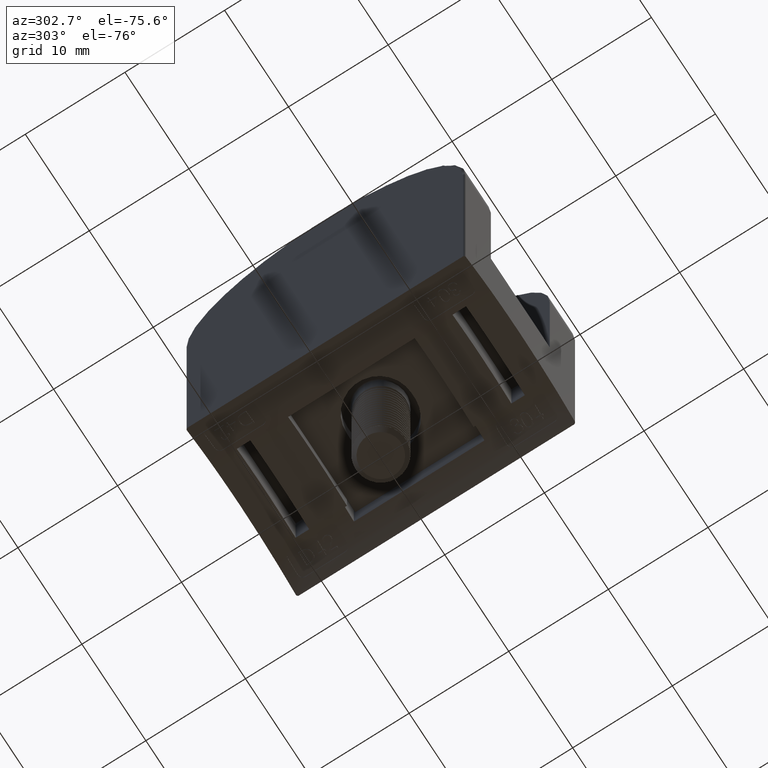
[diagram: clean part render]
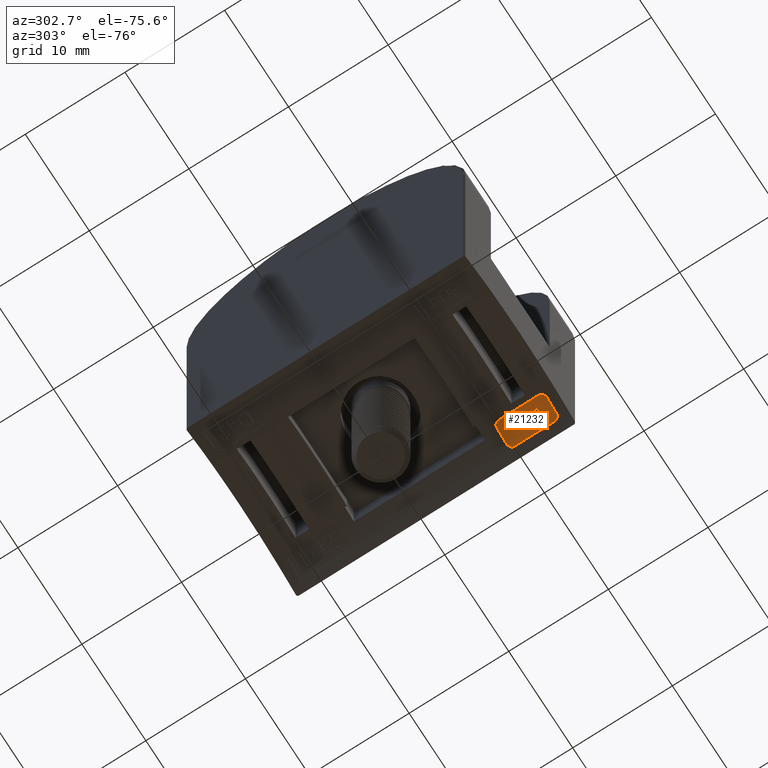
[diagram: same view with one face highlighted and labeled with its STEP entity id]
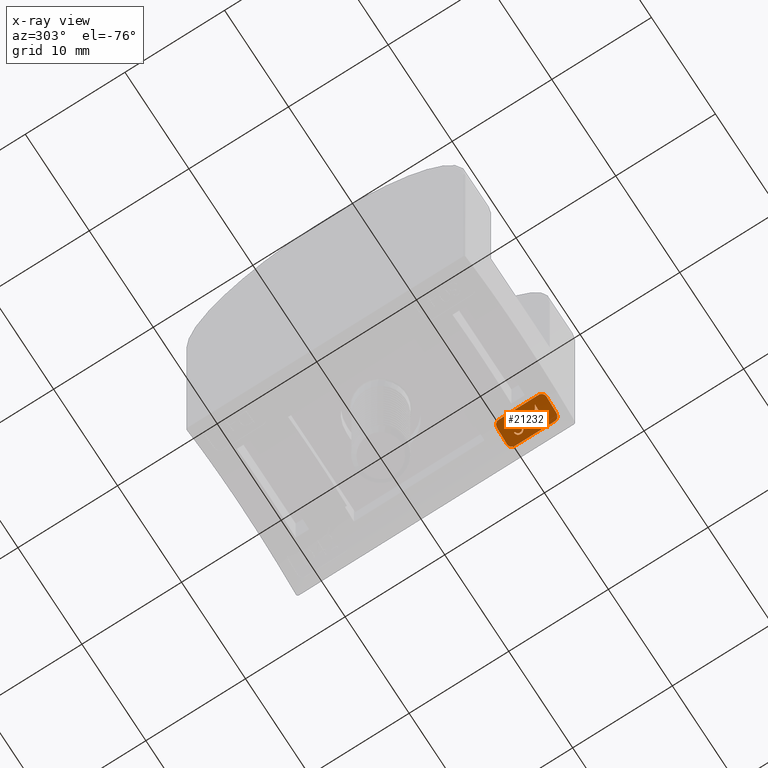
[diagram: x-ray of the same camera — body ghosted, the highlighted face saturated]
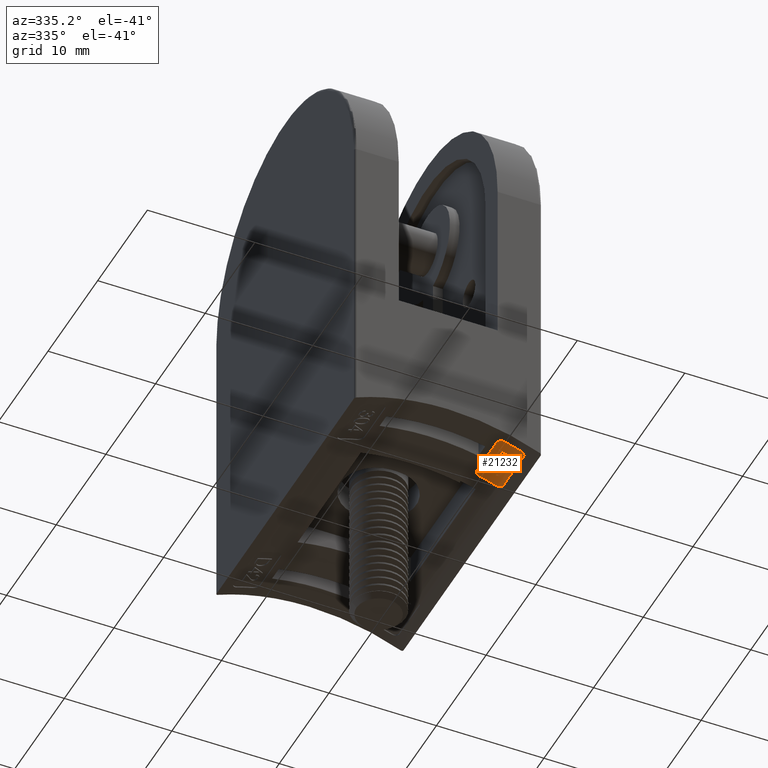
[diagram: same view with one face highlighted and labeled with its STEP entity id]
A machine part, auxiliary view. The second image highlights one B-rep face of the part: STEP entity #21232.
The next image is the same camera in x-ray: the body ghosted, the highlighted face saturated — about 0% of this face is hidden behind the body in this view.
A second angle (auxiliary view) of the same face is appended — the face is thin or edge-on in the first view.
In plain terms, the highlighted cylindrical surface (partial cylindrical patch) has radius 21.3 mm, axis along (0, -1, -0).
Its self-contained STEP definition (entity closure, byte-faithful):
#107 = CARTESIAN_POINT ( 'NONE',  ( 2.336716980450768100, 10.04251046659665100, -0.8725567064124172300 ) ) ;
#367 = CARTESIAN_POINT ( 'NONE',  ( 1.701762820512820400, 9.467796390892088400, -1.082478373824392800 ) ) ;
#401 = DIRECTION ( 'NONE',  ( 0.0000000000000000000, -1.628848334250523300E-016, 1.000000000000000000 ) ) ;
#613 = ORIENTED_EDGE ( 'NONE', *, *, #2674, .T. ) ;
#615 = EDGE_CURVE ( 'NONE', #7838, #30234, #45413, .T. ) ;
#631 = ORIENTED_EDGE ( 'NONE', *, *, #615, .F. ) ;
#670 = CARTESIAN_POINT ( 'NONE',  ( 2.927280367700587900, 10.64199235671665600, -0.6971742882726617000 ) ) ;
#694 = CARTESIAN_POINT ( 'NONE',  ( 1.499999999999999600, 12.99999999999999500, -1.153803353254268000 ) ) ;
#914 = ORIENTED_EDGE ( 'NONE', *, *, #15889, .F. ) ;
#1040 = CARTESIAN_POINT ( 'NONE',  ( 2.040972222222222000, 11.95860042735040800, -0.9676657536807284900 ) ) ;
#1139 = ORIENTED_EDGE ( 'NONE', *, *, #54323, .F. ) ;
#1266 = VECTOR ( 'NONE', #15640, 1000.000000000000000 ) ;
#1423 = CARTESIAN_POINT ( 'NONE',  ( 2.336982387779509300, 10.94005993665469800, -0.8724725344912700500 ) ) ;
#1484 = EDGE_CURVE ( 'NONE', #48206, #15081, #6601, .T. ) ;
#1551 = CARTESIAN_POINT ( 'NONE',  ( 1.904529400476168400, 9.034732480035389200, -1.013010547043867900 ) ) ;
#1644 = CARTESIAN_POINT ( 'NONE',  ( 1.773314803685897400, 9.246780265090807300, -1.057730212531585900 ) ) ;
#1822 = CARTESIAN_POINT ( 'NONE',  ( 3.000000000000000000, 7.999999999999992900, -0.6768423482155193600 ) ) ;
#1878 = CARTESIAN_POINT ( 'NONE',  ( 1.884405352833910000, 10.08410433700667100, -1.019739268753361300 ) ) ;
#2070 = CARTESIAN_POINT ( 'NONE',  ( 1.566079059829058600, 10.48436456663995000, -1.130192526598806600 ) ) ;
#2214 = VERTEX_POINT ( 'NONE', #4563 ) ;
#2218 = CARTESIAN_POINT ( 'NONE',  ( 2.817099914964023000, 9.407898243591880300, -0.7285179495271325600 ) ) ;
#2222 = CARTESIAN_POINT ( 'NONE',  ( 1.599999999999999900, 11.80595619658118900, -1.118167414302057700 ) ) ;
#2325 = ORIENTED_EDGE ( 'NONE', *, *, #36629, .T. ) ;
#2451 = VERTEX_POINT ( 'NONE', #17112 ) ;
#2583 = ORIENTED_EDGE ( 'NONE', *, *, #37218, .F. ) ;
#2674 = EDGE_CURVE ( 'NONE', #4021, #51767, #49578, .T. ) ;
#2890 = VECTOR ( 'NONE', #54993, 1000.000000000000000 ) ;
#3027 = EDGE_CURVE ( 'NONE', #31090, #40650, #3243, .T. ) ;
#3033 = CARTESIAN_POINT ( 'NONE',  ( 1.000000000000000000, -13.99999999999999800, -1.340493460309753800 ) ) ;
#3133 = ORIENTED_EDGE ( 'NONE', *, *, #48576, .F. ) ;
#3243 = B_SPLINE_CURVE_WITH_KNOTS ( 'NONE', 3,
 ( #21499, #57081, #8512, #4430, #30439, #3842, #8698, #48336, #52806, #26159, #57279, #31778 ),
 .UNSPECIFIED., .F., .F.,
 ( 4, 2, 2, 2, 2, 4 ),
 ( 0.0000000000000000000, 0.0001203445888206982300, 0.0002406891776413964500, 0.0004813783552827931200, 0.0007220675329241897600, 0.0009627567105655864600 ),
 .UNSPECIFIED. ) ;
#3280 = CIRCLE ( 'NONE', #55965, 21.29999999999999700 ) ;
#3344 = CARTESIAN_POINT ( 'NONE',  ( 1.574971247746414800, 9.584047887397915100, -1.127022289563970100 ) ) ;
#3381 = CARTESIAN_POINT ( 'NONE',  ( 2.728254400346623600, 9.696771050491738800, -0.7542417906652337800 ) ) ;
#3658 = CARTESIAN_POINT ( 'NONE',  ( 1.981610576923076500, 9.804620726495720400, -0.9872999438499561200 ) ) ;
#3842 = CARTESIAN_POINT ( 'NONE',  ( 1.681486957863870300, 10.77539051482399500, -1.089486548218289600 ) ) ;
#4021 = VERTEX_POINT ( 'NONE', #9360 ) ;
#4047 = CARTESIAN_POINT ( 'NONE',  ( 2.956837606837610100, 11.78184052817841400, -0.6888789744254825200 ) ) ;
#4165 = ORIENTED_EDGE ( 'NONE', *, *, #54482, .T. ) ;
#4287 = LINE ( 'NONE', #36918, #18886 ) ;
#4306 = CARTESIAN_POINT ( 'NONE',  ( 1.000000000000000000, 8.499999999999987600, -1.340493460309753800 ) ) ;
#4392 = FACE_BOUND ( 'NONE', #54806, .T. ) ;
#4430 = CARTESIAN_POINT ( 'NONE',  ( 1.595831776824860000, 10.64174985182226700, -1.119637574759780700 ) ) ;
#4563 = CARTESIAN_POINT ( 'NONE',  ( 2.613123080261752200, 9.855502136752130900, -0.7882404148011368200 ) ) ;
#4753 = ORIENTED_EDGE ( 'NONE', *, *, #25472, .T. ) ;
#4785 = CARTESIAN_POINT ( 'NONE',  ( 1.058567078858126300, 12.76839942131372000, -1.317634387436335900 ) ) ;
#5337 = EDGE_CURVE ( 'NONE', #20968, #2451, #3280, .T. ) ;
#5384 = CARTESIAN_POINT ( 'NONE',  ( 2.410472446007299500, 9.548994003810955500, -0.8497405773597674900 ) ) ;
#5419 = ORIENTED_EDGE ( 'NONE', *, *, #7708, .T. ) ;
#5707 = CARTESIAN_POINT ( 'NONE',  ( 1.956169871794871200, 9.024439102564088000, -0.9957738281835566400 ) ) ;
#5993 = ORIENTED_EDGE ( 'NONE', *, *, #29583, .T. ) ;
#6059 = CARTESIAN_POINT ( 'NONE',  ( 2.915810477845265100, 9.282814626264972400, -0.7004035471916197900 ) ) ;
#6104 = VERTEX_POINT ( 'NONE', #24966 ) ;
#6115 = EDGE_CURVE ( 'NONE', #35760, #53698, #26392, .T. ) ;
#6274 = B_SPLINE_CURVE_WITH_KNOTS ( 'NONE', 3,
 ( #35445, #53154, #57032, #26707, #8264, #13496, #35261, #39712, #107, #13116 ),
 .UNSPECIFIED., .F., .F.,
 ( 4, 2, 2, 2, 4 ),
 ( 0.0000000000000000000, 0.0002377213839339317800, 0.0004754427678678635500, 0.0007131641518017953800, 0.0009508855357357271000 ),
 .UNSPECIFIED. ) ;
#6313 = ORIENTED_EDGE ( 'NONE', *, *, #11194, .T. ) ;
#6412 = VECTOR ( 'NONE', #7517, 1000.000000000000000 ) ;
#6430 = CARTESIAN_POINT ( 'NONE',  ( 2.481130522248788500, 9.829450042813915500, -0.8280519457517489000 ) ) ;
#6439 = CIRCLE ( 'NONE', #38020, 21.29999999999999700 ) ;
#6563 = CARTESIAN_POINT ( 'NONE',  ( 1.905288461538461800, -13.99999999999999800, -1.012828451982250600 ) ) ;
#6601 = B_SPLINE_CURVE_WITH_KNOTS ( 'NONE', 3,
 ( #39334, #56477, #38584, #34512, #29832, #7710 ),
 .UNSPECIFIED., .F., .F.,
 ( 4, 2, 4 ),
 ( 0.0000000000000000000, 9.425284090821902500E-005, 0.0001885056818164380500 ),
 .UNSPECIFIED. ) ;
#6610 = CARTESIAN_POINT ( 'NONE',  ( 1.611026649768792800, 9.249590227254472600, -1.114262523935421400 ) ) ;
#6743 = CARTESIAN_POINT ( 'NONE',  ( 1.773314803685897400, 9.246780265090807300, -1.057730212531585900 ) ) ;
#6775 = CARTESIAN_POINT ( 'NONE',  ( 8.699999999999997500, 7.999999999999996400, -21.19999999999999900 ) ) ;
#6983 = EDGE_LOOP ( 'NONE', ( #5993, #16331, #56151, #12849, #26182, #47979, #4165, #38710, #12687, #54432 ) ) ;
#7260 = CARTESIAN_POINT ( 'NONE',  ( 2.821153846153845500, 9.470711471688028700, -0.7273556202573549000 ) ) ;
#7311 = EDGE_CURVE ( 'NONE', #21743, #36142, #22119, .T. ) ;
#7517 = DIRECTION ( 'NONE',  ( -0.0000000000000000000, 1.000000000000000000, -0.0000000000000000000 ) ) ;
#7573 = CARTESIAN_POINT ( 'NONE',  ( 2.226911418462858000, 9.628968066056423000, -0.9073975327981486100 ) ) ;
#7630 = CIRCLE ( 'NONE', #36796, 21.29999999999999700 ) ;
#7708 = EDGE_CURVE ( 'NONE', #51767, #44265, #21168, .T. ) ;
#7710 = CARTESIAN_POINT ( 'NONE',  ( 2.340960536858974500, 9.701002854567303000, -0.8713842796363794300 ) ) ;
#7764 = CARTESIAN_POINT ( 'NONE',  ( 2.026620679262090900, 9.802504027619058000, -0.9723392807695154800 ) ) ;
#7838 = VERTEX_POINT ( 'NONE', #44615 ) ;
#7882 = CARTESIAN_POINT ( 'NONE',  ( 2.674855664000032300, 9.728850478894871800, -0.7699140972944768000 ) ) ;
#8264 = CARTESIAN_POINT ( 'NONE',  ( 2.776641701109790800, 10.14863217367450300, -0.7400631787240076200 ) ) ;
#8512 = CARTESIAN_POINT ( 'NONE',  ( 1.571892562963153700, 10.56471175237527800, -1.128123016562933000 ) ) ;
#8698 = CARTESIAN_POINT ( 'NONE',  ( 1.745239486659486500, 10.82452989976599900, -1.067277058028242000 ) ) ;
#8773 = CARTESIAN_POINT ( 'NONE',  ( 1.058224646979123700, 8.231814502219073400, -1.317762900616831000 ) ) ;
#8819 = EDGE_LOOP ( 'NONE', ( #39111, #33384, #28602, #57035, #40953, #47996, #49234, #12466, #9589, #17811, #631, #29335, #50220, #30759, #24375, #914, #1139 ) ) ;
#8947 = CARTESIAN_POINT ( 'NONE',  ( 2.617628205128204500, 9.075320512820502100, -0.7868975079987462500 ) ) ;
#9254 = VECTOR ( 'NONE', #22316, 1000.000000000000000 ) ;
#9360 = CARTESIAN_POINT ( 'NONE',  ( 3.000000000000000000, 12.99999999999999500, -0.6768423482155193600 ) ) ;
#9589 = ORIENTED_EDGE ( 'NONE', *, *, #41707, .F. ) ;
#9600 = CARTESIAN_POINT ( 'NONE',  ( 2.841004732759282000, 10.77616472196325900, -0.7216116786686894700 ) ) ;
#9708 = DIRECTION ( 'NONE',  ( 0.0000000000000000000, 1.628848334250523300E-016, -1.000000000000000000 ) ) ;
#9791 = DIRECTION ( 'NONE',  ( -0.0000000000000000000, -1.000000000000000000, -1.734723475976807100E-016 ) ) ;
#9869 = VERTEX_POINT ( 'NONE', #42053 ) ;
#9928 = CARTESIAN_POINT ( 'NONE',  ( 2.707717102999166700, 9.097079297774870500, -0.7600542502599461100 ) ) ;
#9932 = VERTEX_POINT ( 'NONE', #37553 ) ;
#10005 = CARTESIAN_POINT ( 'NONE',  ( 1.000000000000000000, 12.49999999999998800, -1.340493460309753800 ) ) ;
#10080 = VECTOR ( 'NONE', #57471, 1000.000000000000000 ) ;
#10366 = DIRECTION ( 'NONE',  ( 0.0000000000000000000, 1.628848334250523300E-016, -1.000000000000000000 ) ) ;
#10476 = VERTEX_POINT ( 'NONE', #38925 ) ;
#10639 = CARTESIAN_POINT ( 'NONE',  ( 2.109228262619880400, 10.04562381683239800, -0.9451753004347146500 ) ) ;
#10689 = CARTESIAN_POINT ( 'NONE',  ( 1.566079059829060400, 9.465676332131405200, -1.130192526598805300 ) ) ;
#11027 = CARTESIAN_POINT ( 'NONE',  ( 1.702551003345389200, 9.509711520880104600, -1.082204190428167000 ) ) ;
#11069 = CARTESIAN_POINT ( 'NONE',  ( 1.000000000000000000, 12.49999999999998800, -1.340493460309753800 ) ) ;
#11194 = EDGE_CURVE ( 'NONE', #9869, #53540, #39054, .T. ) ;
#11311 = LINE ( 'NONE', #53626, #9254 ) ;
#11436 = EDGE_CURVE ( 'NONE', #34197, #20968, #16076, .T. ) ;
#11452 = EDGE_CURVE ( 'NONE', #28659, #36142, #4287, .T. ) ;
#11665 = VERTEX_POINT ( 'NONE', #13126 ) ;
#11843 = CARTESIAN_POINT ( 'NONE',  ( 2.147760006541079100, 9.743094121771386900, -0.9327904797238546500 ) ) ;
#12121 = CARTESIAN_POINT ( 'NONE',  ( 1.566079059829060400, 9.465676332131405200, -1.130192526598805300 ) ) ;
#12433 = LINE ( 'NONE', #6563, #1266 ) ;
#12466 = ORIENTED_EDGE ( 'NONE', *, *, #52742, .F. ) ;
#12519 = CARTESIAN_POINT ( 'NONE',  ( 2.956837606837606500, 9.469121427617517700, -0.6888789744254817400 ) ) ;
#12530 = CARTESIAN_POINT ( 'NONE',  ( 2.817159384132744500, 9.533704308076016400, -0.7285013552294236100 ) ) ;
#12613 = CARTESIAN_POINT ( 'NONE',  ( 2.180619598862367300, 9.709090760711692500, -0.9222222652092445500 ) ) ;
#12687 = ORIENTED_EDGE ( 'NONE', *, *, #5337, .T. ) ;
#12770 = CARTESIAN_POINT ( 'NONE',  ( 3.257510326788783500, 8.052021062042747700, -0.6068328517210098700 ) ) ;
#12849 = ORIENTED_EDGE ( 'NONE', *, *, #56491, .F. ) ;
#12902 = CARTESIAN_POINT ( 'NONE',  ( 2.915858883667777200, 9.658166859299035100, -0.7003902487111557400 ) ) ;
#13116 = CARTESIAN_POINT ( 'NONE',  ( 2.260928318643162300, 10.04206730769229900, -0.8965925056322566800 ) ) ;
#13126 = CARTESIAN_POINT ( 'NONE',  ( 1.905288461538461800, 11.80595619658118500, -1.012828451982247000 ) ) ;
#13139 = CIRCLE ( 'NONE', #27866, 21.29999999999999700 ) ;
#13329 = CARTESIAN_POINT ( 'NONE',  ( 3.443467620077305100, 8.234795989473866500, -0.5585830336482956500 ) ) ;
#13496 = CARTESIAN_POINT ( 'NONE',  ( 2.638401134651104900, 10.08305350687535700, -0.7805923821664785300 ) ) ;
#13699 = B_SPLINE_CURVE_WITH_KNOTS ( 'NONE', 3,
 ( #41564, #1551, #24224, #14944, #55175, #19226, #6610, #15496, #41378, #10689 ),
 .UNSPECIFIED., .F., .F.,
 ( 4, 2, 2, 2, 4 ),
 ( 1.852685484479510600E-018, 0.0001641061457847399000, 0.0003282122915694779600, 0.0004923184373542160500, 0.0006564245831389540800 ),
 .UNSPECIFIED. ) ;
#13913 = EDGE_CURVE ( 'NONE', #15081, #2214, #46997, .T. ) ;
#14088 = B_SPLINE_CURVE_WITH_KNOTS ( 'NONE', 3,
 ( #55309, #41517, #10639, #15255, #1878, #41901, #41700, #54926, #32564, #2070 ),
 .UNSPECIFIED., .F., .F.,
 ( 4, 2, 2, 2, 4 ),
 ( 0.0000000000000000000, 0.0002380588544567524800, 0.0004761177089135048500, 0.0007141765633702572000, 0.0009522354178270094900 ),
 .UNSPECIFIED. ) ;
#14243 = CARTESIAN_POINT ( 'NONE',  ( 2.412907604294324500, 10.93703934304592800, -0.8488669281583247600 ) ) ;
#14414 = B_SPLINE_CURVE_WITH_KNOTS ( 'NONE', 3,
 ( #42334, #29310, #30079, #4047 ),
 .UNSPECIFIED., .F., .F.,
 ( 4, 4 ),
 ( 0.0000000000000000000, 1.000000000000000000 ),
 .UNSPECIFIED. ) ;
#14473 = B_SPLINE_CURVE_WITH_KNOTS ( 'NONE', 3,
 ( #47680, #47864, #56637, #52159, #38921, #52343, #12902, #52728, #26475, #12519 ),
 .UNSPECIFIED., .F., .F.,
 ( 4, 2, 2, 2, 4 ),
 ( 0.0000000000000000000, 0.0001449685270821343800, 0.0002899370541642687600, 0.0004349055812464031400, 0.0005798741083285375200 ),
 .UNSPECIFIED. ) ;
#14766 = CARTESIAN_POINT ( 'NONE',  ( 2.617628205128204500, 9.075320512820502100, -0.7868975079987462500 ) ) ;
#14774 = FACE_BOUND ( 'NONE', #8819, .T. ) ;
#14944 = CARTESIAN_POINT ( 'NONE',  ( 1.759150086871414500, 9.092588727423850200, -1.062544223124776100 ) ) ;
#15016 = CARTESIAN_POINT ( 'NONE',  ( 1.706529043146611800, 9.387879023596902100, -1.080817239936402900 ) ) ;
#15081 = VERTEX_POINT ( 'NONE', #19537 ) ;
#15255 = CARTESIAN_POINT ( 'NONE',  ( 1.959709479331689800, 10.06594139849097200, -0.9944393940341900200 ) ) ;
#15268 = CARTESIAN_POINT ( 'NONE',  ( 1.730126250820787500, 9.631166273866256200, -1.072630147834206800 ) ) ;
#15496 = CARTESIAN_POINT ( 'NONE',  ( 1.573645179436109500, 9.353921464789230800, -1.127494922429360000 ) ) ;
#15640 = DIRECTION ( 'NONE',  ( -0.0000000000000000000, 1.000000000000000000, -0.0000000000000000000 ) ) ;
#15848 = EDGE_CURVE ( 'NONE', #11665, #10476, #47075, .T. ) ;
#15889 = EDGE_CURVE ( 'NONE', #6104, #57047, #56631, .T. ) ;
#16076 = LINE ( 'NONE', #49776, #2890 ) ;
#16296 = CARTESIAN_POINT ( 'NONE',  ( 1.956169871794871200, 9.143162393162382900, -0.9957738281835548700 ) ) ;
#16331 = ORIENTED_EDGE ( 'NONE', *, *, #15848, .F. ) ;
#16456 = AXIS2_PLACEMENT_3D ( 'NONE', #53646, #26994, #401 ) ;
#16787 = CARTESIAN_POINT ( 'NONE',  ( 2.613653094951922600, 9.736778846153841400, -0.7880823695711649500 ) ) ;
#16949 = CARTESIAN_POINT ( 'NONE',  ( 1.853293638170666600, 9.899501659115030000, -1.030385090079898300 ) ) ;
#17026 = VERTEX_POINT ( 'NONE', #1040 ) ;
#17112 = CARTESIAN_POINT ( 'NONE',  ( 2.040972222222233100, 11.80595619658118900, -0.9676657536807215000 ) ) ;
#17330 = CARTESIAN_POINT ( 'NONE',  ( 1.935908052409097900, 9.920507309761017500, -1.002526771323223100 ) ) ;
#17595 = FACE_OUTER_BOUND ( 'NONE', #53366, .T. ) ;
#17811 = ORIENTED_EDGE ( 'NONE', *, *, #23650, .F. ) ;
#18279 = CARTESIAN_POINT ( 'NONE',  ( 2.340960536858974500, 9.701002854567303000, -0.8713842796363794300 ) ) ;
#18361 = CARTESIAN_POINT ( 'NONE',  ( 2.956837606837607400, 10.48436456663995000, -0.6888789744254817400 ) ) ;
#18443 = EDGE_CURVE ( 'NONE', #53698, #21743, #48057, .T. ) ;
#18704 = B_SPLINE_CURVE_WITH_KNOTS ( 'NONE', 3,
 ( #50254, #55269, #19511, #42054, #41290, #2218, #33296, #36810 ),
 .UNSPECIFIED., .F., .F.,
 ( 4, 2, 2, 4 ),
 ( 3.245370453949394000E-018, 0.0001861122268732976500, 0.0002791683403099472100, 0.0003722244537465968200 ),
 .UNSPECIFIED. ) ;
#18828 = EDGE_CURVE ( 'NONE', #57047, #48206, #41271, .T. ) ;
#18886 = VECTOR ( 'NONE', #28169, 1000.000000000000000 ) ;
#19226 = CARTESIAN_POINT ( 'NONE',  ( 1.640223711580007600, 9.202053705909490200, -1.103953599575094400 ) ) ;
#19393 = CARTESIAN_POINT ( 'NONE',  ( 3.443544635808264900, 12.76526428651562900, -0.5585617724775369100 ) ) ;
#19511 = CARTESIAN_POINT ( 'NONE',  ( 2.727245845520298100, 9.248675043149805900, -0.7545168220169693500 ) ) ;
#19535 = LINE ( 'NONE', #32464, #21425 ) ;
#19537 = CARTESIAN_POINT ( 'NONE',  ( 2.340960536858974500, 9.701002854567303000, -0.8713842796363794300 ) ) ;
#19812 = EDGE_CURVE ( 'NONE', #53540, #22831, #34510, .T. ) ;
#19956 = VECTOR ( 'NONE', #43374, 1000.000000000000000 ) ;
#20115 = B_SPLINE_CURVE_WITH_KNOTS ( 'NONE', 3,
 ( #53912, #1423, #14243, #40858, #41254, #54284, #9600, #40671, #670, #41053, #45338, #18361 ),
 .UNSPECIFIED., .F., .F.,
 ( 4, 2, 2, 2, 2, 4 ),
 ( 4.470280076681872500E-019, 0.0002377056940974278400, 0.0004754113881948552400, 0.0007131170822922826700, 0.0008319699293409963100, 0.0009508227763897100500 ),
 .UNSPECIFIED. ) ;
#20353 = CARTESIAN_POINT ( 'NONE',  ( 2.617628205128204500, 9.194043803418791700, -0.7868975079987471400 ) ) ;
#20628 = DIRECTION ( 'NONE',  ( -0.0000000000000000000, 1.000000000000000000, -0.0000000000000000000 ) ) ;
#20673 = CARTESIAN_POINT ( 'NONE',  ( 2.820419286068077900, 9.502458576502007800, -0.7275665537183632100 ) ) ;
#20956 = VERTEX_POINT ( 'NONE', #31084 ) ;
#20968 = VERTEX_POINT ( 'NONE', #57145 ) ;
#21014 = CARTESIAN_POINT ( 'NONE',  ( 1.775342119930685800, 9.864900112142565900, -1.056958329926020100 ) ) ;
#21168 = LINE ( 'NONE', #39964, #10080 ) ;
#21232 = ADVANCED_FACE ( 'NONE', ( #50980, #4392, #17595, #14774 ), #23126, .F. ) ;
#21425 = VECTOR ( 'NONE', #55392, 1000.000000000000000 ) ;
#21499 = CARTESIAN_POINT ( 'NONE',  ( 1.566079059829058600, 10.48436456663995000, -1.130192526598806600 ) ) ;
#21511 = CARTESIAN_POINT ( 'NONE',  ( 2.239377176611830700, 9.582829218136957600, -0.9034381855235122900 ) ) ;
#21665 = CARTESIAN_POINT ( 'NONE',  ( 3.000000000000000000, 7.999999999999992900, -0.6768423482155193600 ) ) ;
#21741 = EDGE_CURVE ( 'NONE', #11665, #28150, #6439, .T. ) ;
#21743 = VERTEX_POINT ( 'NONE', #6743 ) ;
#21963 = CARTESIAN_POINT ( 'NONE',  ( 1.499999999999999600, 7.999999999999992900, -1.153803353254268000 ) ) ;
#22119 = B_SPLINE_CURVE_WITH_KNOTS ( 'NONE', 3,
 ( #1644, #36805, #32713, #23566 ),
 .UNSPECIFIED., .F., .F.,
 ( 4, 4 ),
 ( 0.0000000000000000000, 0.0002218446258474749900 ),
 .UNSPECIFIED. ) ;
#22277 = CARTESIAN_POINT ( 'NONE',  ( 2.613653094951922600, 9.736778846153841400, -0.7880823695711649500 ) ) ;
#22316 = DIRECTION ( 'NONE',  ( -0.0000000000000000000, 1.000000000000000000, -0.0000000000000000000 ) ) ;
#22475 = CARTESIAN_POINT ( 'NONE',  ( 2.482881351120207900, 9.680596799134139700, -0.8275094544663804700 ) ) ;
#22655 = CARTESIAN_POINT ( 'NONE',  ( 2.398609864526740000, 9.473139724845735200, -0.8534404696604153100 ) ) ;
#22831 = VERTEX_POINT ( 'NONE', #39592 ) ;
#22932 = CARTESIAN_POINT ( 'NONE',  ( 2.193619421880375100, 9.869532578316006200, -0.9180297028180577400 ) ) ;
#23126 = CYLINDRICAL_SURFACE ( 'NONE', #41019, 21.29999999999999700 ) ;
#23378 = CARTESIAN_POINT ( 'NONE',  ( 0.9999999999999997800, 12.63656862433894400, -1.340493460309753800 ) ) ;
#23495 = CARTESIAN_POINT ( 'NONE',  ( 2.795254752612889700, 9.136850983599725100, -0.7347037542715605400 ) ) ;
#23566 = CARTESIAN_POINT ( 'NONE',  ( 1.956169871794871200, 9.143162393162382900, -0.9957738281835548700 ) ) ;
#23650 = EDGE_CURVE ( 'NONE', #30234, #45933, #52166, .T. ) ;
#23684 = VERTEX_POINT ( 'NONE', #7260 ) ;
#23857 = CARTESIAN_POINT ( 'NONE',  ( 2.506660162171075800, 9.839687320039672600, -0.8202724870383737400 ) ) ;
#23926 = CARTESIAN_POINT ( 'NONE',  ( 1.702375053082478800, 9.427866440143990400, -1.082265397851950800 ) ) ;
#23952 = CARTESIAN_POINT ( 'NONE',  ( 2.260928318643162300, 10.94097222222221300, -0.8965925056322562300 ) ) ;
#24224 = CARTESIAN_POINT ( 'NONE',  ( 1.854196707173316100, 9.048646638996499900, -1.030034706075825000 ) ) ;
#24375 = ORIENTED_EDGE ( 'NONE', *, *, #18828, .F. ) ;
#24385 = CARTESIAN_POINT ( 'NONE',  ( 1.941896068729971100, 9.803760669084763200, -1.000500433198041800 ) ) ;
#24966 = CARTESIAN_POINT ( 'NONE',  ( 1.566079059829060400, 9.465676332131405200, -1.130192526598805300 ) ) ;
#25181 = EDGE_CURVE ( 'NONE', #2451, #17026, #11311, .T. ) ;
#25447 = VERTEX_POINT ( 'NONE', #44013 ) ;
#25472 = EDGE_CURVE ( 'NONE', #44265, #35194, #35861, .T. ) ;
#26159 = CARTESIAN_POINT ( 'NONE',  ( 2.107949638830808300, 10.93662001601538900, -0.9455891808171601500 ) ) ;
#26182 = ORIENTED_EDGE ( 'NONE', *, *, #33277, .T. ) ;
#26256 = CARTESIAN_POINT ( 'NONE',  ( 1.964495055775597400, 9.922299923877304200, -0.9929746008598714400 ) ) ;
#26392 = B_SPLINE_CURVE_WITH_KNOTS ( 'NONE', 3,
 ( #37414, #24385, #55922, #33157, #28887, #46561, #15268, #29272, #11027, #46377 ),
 .UNSPECIFIED., .F., .F.,
 ( 4, 2, 2, 2, 4 ),
 ( 1.371419323662773900E-018, 0.0001238334228435800900, 0.0002476668456871587700, 0.0003715002685307375000, 0.0004953336913743162300 ),
 .UNSPECIFIED. ) ;
#26421 = AXIS2_PLACEMENT_3D ( 'NONE', #6775, #42115, #32783 ) ;
#26434 = CARTESIAN_POINT ( 'NONE',  ( 1.246017441415850700, 8.049909138404506900, -1.246598619823008100 ) ) ;
#26475 = CARTESIAN_POINT ( 'NONE',  ( 2.955360717175952600, 9.518038836247077600, -0.6892925070233910700 ) ) ;
#26707 = CARTESIAN_POINT ( 'NONE',  ( 2.841747555316741300, 10.19657304920709300, -0.7213996078177039600 ) ) ;
#26939 = CARTESIAN_POINT ( 'NONE',  ( 2.397142094017088000, 9.397569444444441100, -0.8538951586061926900 ) ) ;
#26994 = DIRECTION ( 'NONE',  ( -0.0000000000000000000, 1.000000000000000000, 1.734723475976807100E-016 ) ) ;
#27035 = CARTESIAN_POINT ( 'NONE',  ( 2.397142094017088000, 9.397569444444441100, -0.8538951586061926900 ) ) ;
#27216 = CARTESIAN_POINT ( 'NONE',  ( 2.228067407852564400, 9.844371828258541500, -0.9070433765136241000 ) ) ;
#27849 = CARTESIAN_POINT ( 'NONE',  ( 8.699999999999997500, 11.80595619658119200, -21.19999999999999900 ) ) ;
#27866 = AXIS2_PLACEMENT_3D ( 'NONE', #42127, #28723, #46985 ) ;
#27988 = CARTESIAN_POINT ( 'NONE',  ( 2.949332391099161100, 9.373052973778975200, -0.6909745427010293200 ) ) ;
#28150 = VERTEX_POINT ( 'NONE', #2222 ) ;
#28169 = DIRECTION ( 'NONE',  ( -0.0000000000000000000, 1.000000000000000000, -0.0000000000000000000 ) ) ;
#28314 = VERTEX_POINT ( 'NONE', #57616 ) ;
#28351 = CARTESIAN_POINT ( 'NONE',  ( 2.559150980506981600, 9.852810473625206500, -0.8043944642676638100 ) ) ;
#28451 = CARTESIAN_POINT ( 'NONE',  ( 1.499999999999999600, 7.999999999999992900, -1.153803353254268000 ) ) ;
#28602 = ORIENTED_EDGE ( 'NONE', *, *, #18443, .F. ) ;
#28617 = CARTESIAN_POINT ( 'NONE',  ( 1.701762820512820400, 9.467796390892088400, -1.082478373824392800 ) ) ;
#28659 = VERTEX_POINT ( 'NONE', #5707 ) ;
#28723 = DIRECTION ( 'NONE',  ( -0.0000000000000000000, 1.000000000000000000, 1.734723475976807100E-016 ) ) ;
#28887 = CARTESIAN_POINT ( 'NONE',  ( 1.800810949185242000, 9.731529575505408800, -1.048277409695864700 ) ) ;
#29272 = CARTESIAN_POINT ( 'NONE',  ( 1.706432290605436300, 9.552009786329261200, -1.080850715313939700 ) ) ;
#29310 = CARTESIAN_POINT ( 'NONE',  ( 2.243220105843043200, 11.29176802560528100, -0.8990855218592263000 ) ) ;
#29335 = ORIENTED_EDGE ( 'NONE', *, *, #30990, .F. ) ;
#29452 = DIRECTION ( 'NONE',  ( 0.0000000000000000000, 1.628848334250523300E-016, -1.000000000000000000 ) ) ;
#29583 = EDGE_CURVE ( 'NONE', #17026, #10476, #7630, .T. ) ;
#29731 = EDGE_CURVE ( 'NONE', #22831, #4021, #13139, .T. ) ;
#29832 = CARTESIAN_POINT ( 'NONE',  ( 2.327521971191480500, 9.728970208046215300, -0.8755880272295818400 ) ) ;
#30014 = CARTESIAN_POINT ( 'NONE',  ( 2.261458333333333100, 9.397569444444441100, -0.8964244231072158200 ) ) ;
#30079 = CARTESIAN_POINT ( 'NONE',  ( 2.593736487609432200, 11.53248303072458600, -0.7905481464939558800 ) ) ;
#30082 = CARTESIAN_POINT ( 'NONE',  ( 2.255181597898539400, 9.490948880161763400, -0.8984142363488371000 ) ) ;
#30234 = VERTEX_POINT ( 'NONE', #8947 ) ;
#30439 = CARTESIAN_POINT ( 'NONE',  ( 1.613966098984986700, 10.67745105069898600, -1.113220947401797300 ) ) ;
#30759 = ORIENTED_EDGE ( 'NONE', *, *, #1484, .F. ) ;
#30908 = CARTESIAN_POINT ( 'NONE',  ( 0.9999999999999826800, 8.363243335639129600, -1.340493460309739100 ) ) ;
#30943 = CARTESIAN_POINT ( 'NONE',  ( 1.566079059829058600, 10.48436456663995000, -1.130192526598806600 ) ) ;
#30990 = EDGE_CURVE ( 'NONE', #2214, #7838, #14473, .T. ) ;
#31084 = CARTESIAN_POINT ( 'NONE',  ( 2.260928318643162300, 10.04206730769229900, -0.8965925056322566800 ) ) ;
#31090 = VERTEX_POINT ( 'NONE', #30943 ) ;
#31265 = CARTESIAN_POINT ( 'NONE',  ( 1.905288461538461800, 11.05969551282050200, -1.012828451982236800 ) ) ;
#31595 = CARTESIAN_POINT ( 'NONE',  ( 2.577322367915743300, 9.734940319139470300, -0.7989153256930898700 ) ) ;
#31657 = CARTESIAN_POINT ( 'NONE',  ( 2.586060730998699600, 9.854651225248833400, -0.7963105269556293200 ) ) ;
#31778 = CARTESIAN_POINT ( 'NONE',  ( 2.260928318643162300, 10.94097222222221300, -0.8965925056322562300 ) ) ;
#31848 = CARTESIAN_POINT ( 'NONE',  ( 8.699999999999997500, 11.95860042735042600, -21.19999999999999900 ) ) ;
#32464 = CARTESIAN_POINT ( 'NONE',  ( 1.599999999999999900, -13.99999999999999800, -1.118167414302057700 ) ) ;
#32564 = CARTESIAN_POINT ( 'NONE',  ( 1.567447506679920300, 10.40336463141291300, -1.129706104810363600 ) ) ;
#32600 = DIRECTION ( 'NONE',  ( -0.0000000000000000000, 1.000000000000000000, -0.0000000000000000000 ) ) ;
#32713 = CARTESIAN_POINT ( 'NONE',  ( 1.888712407739822700, 9.163646411730420400, -1.018289992603718600 ) ) ;
#32783 = DIRECTION ( 'NONE',  ( 0.0000000000000000000, 1.628848334250523300E-016, -1.000000000000000000 ) ) ;
#33157 = CARTESIAN_POINT ( 'NONE',  ( 1.832013675661622500, 9.758455992941870600, -1.037605407154554400 ) ) ;
#33277 = EDGE_CURVE ( 'NONE', #9932, #37424, #48329, .T. ) ;
#33296 = CARTESIAN_POINT ( 'NONE',  ( 2.820061604633601300, 9.439427272215422000, -0.7276692641492347200 ) ) ;
#33384 = ORIENTED_EDGE ( 'NONE', *, *, #7311, .F. ) ;
#33392 = VERTEX_POINT ( 'NONE', #28451 ) ;
#34197 = VERTEX_POINT ( 'NONE', #50175 ) ;
#34510 = B_SPLINE_CURVE_WITH_KNOTS ( 'NONE', 3,
 ( #10005, #23378, #4785, #54501, #44981, #694 ),
 .UNSPECIFIED., .F., .F.,
 ( 4, 2, 4 ),
 ( 7.036463746558689700E-018, 0.0004037025246337083600, 0.0008074050492674096800 ),
 .UNSPECIFIED. ) ;
#34512 = CARTESIAN_POINT ( 'NONE',  ( 2.312615331226641800, 9.755982765696810300, -0.8802628792282675100 ) ) ;
#34632 = CARTESIAN_POINT ( 'NONE',  ( 1.646650618745633300, 9.747255915645272500, -1.101689995038541500 ) ) ;
#34704 = CARTESIAN_POINT ( 'NONE',  ( 3.500000000000000000, 8.365601995577641500, -0.5444922599322258300 ) ) ;
#35016 = CARTESIAN_POINT ( 'NONE',  ( 1.567911167593597100, 9.525423595011890400, -1.129541294046454200 ) ) ;
#35194 = VERTEX_POINT ( 'NONE', #1822 ) ;
#35261 = CARTESIAN_POINT ( 'NONE',  ( 2.562724503358103000, 10.06508873630268400, -0.8031860425988822700 ) ) ;
#35445 = CARTESIAN_POINT ( 'NONE',  ( 2.956837606837607400, 10.48436456663995000, -0.6888789744254817400 ) ) ;
#35455 = VERTEX_POINT ( 'NONE', #27035 ) ;
#35760 = VERTEX_POINT ( 'NONE', #53670 ) ;
#35861 = B_SPLINE_CURVE_WITH_KNOTS ( 'NONE', 3,
 ( #53176, #34704, #13329, #12770, #57635, #21665 ),
 .UNSPECIFIED., .F., .F.,
 ( 4, 2, 4 ),
 ( 7.067301816566135100E-018, 0.0003974031080602740600, 0.0007948062161205410700 ),
 .UNSPECIFIED. ) ;
#36126 = EDGE_CURVE ( 'NONE', #37859, #35760, #49370, .T. ) ;
#36142 = VERTEX_POINT ( 'NONE', #16296 ) ;
#36319 = DIRECTION ( 'NONE',  ( -0.0000000000000000000, -1.000000000000000000, -1.734723475976807100E-016 ) ) ;
#36533 = CARTESIAN_POINT ( 'NONE',  ( 2.955937039507816600, 9.420798828947674500, -0.6891311354075418900 ) ) ;
#36629 = EDGE_CURVE ( 'NONE', #33392, #9869, #39741, .T. ) ;
#36796 = AXIS2_PLACEMENT_3D ( 'NONE', #31848, #36319, #9708 ) ;
#36805 = CARTESIAN_POINT ( 'NONE',  ( 1.821111970045867100, 9.192258191358263300, -1.041293339818395200 ) ) ;
#36810 = CARTESIAN_POINT ( 'NONE',  ( 2.821153846153845500, 9.470711471688028700, -0.7273556202573549000 ) ) ;
#36918 = CARTESIAN_POINT ( 'NONE',  ( 1.956169871794871200, -13.99999999999999800, -0.9957738281835583100 ) ) ;
#37218 = EDGE_CURVE ( 'NONE', #20956, #31090, #14088, .T. ) ;
#37346 = CARTESIAN_POINT ( 'NONE',  ( 1.773314803685897400, 9.246780265090807300, -1.057730212531585900 ) ) ;
#37414 = CARTESIAN_POINT ( 'NONE',  ( 1.981610576923076500, 9.804620726495720400, -0.9872999438499561200 ) ) ;
#37424 = VERTEX_POINT ( 'NONE', #47723 ) ;
#37553 = CARTESIAN_POINT ( 'NONE',  ( 1.599999999999999900, 11.68723290598289400, -1.118167414302054100 ) ) ;
#37587 = DIRECTION ( 'NONE',  ( -0.0000000000000000000, -1.000000000000000000, -1.734723475976807100E-016 ) ) ;
#37859 = VERTEX_POINT ( 'NONE', #30014 ) ;
#37920 = CARTESIAN_POINT ( 'NONE',  ( 1.729744356921234100, 9.311674446892373800, -1.072762553511703400 ) ) ;
#38020 = AXIS2_PLACEMENT_3D ( 'NONE', #38168, #37587, #29452 ) ;
#38168 = CARTESIAN_POINT ( 'NONE',  ( 8.699999999999997500, 11.80595619658119200, -21.19999999999999900 ) ) ;
#38573 = ORIENTED_EDGE ( 'NONE', *, *, #44727, .T. ) ;
#38584 = CARTESIAN_POINT ( 'NONE',  ( 2.274488280023262600, 9.804498574954589400, -0.8922872114905265900 ) ) ;
#38679 = DIRECTION ( 'NONE',  ( 0.0000000000000000000, -1.628848334250523300E-016, 1.000000000000000000 ) ) ;
#38710 = ORIENTED_EDGE ( 'NONE', *, *, #11436, .T. ) ;
#38715 = CARTESIAN_POINT ( 'NONE',  ( 1.880166618235368900, 9.908440982328865900, -1.021280086597465200 ) ) ;
#38890 = CIRCLE ( 'NONE', #26421, 21.29999999999999700 ) ;
#38921 = CARTESIAN_POINT ( 'NONE',  ( 2.829730536811434900, 9.773745625794745700, -0.7248692760763874000 ) ) ;
#38925 = CARTESIAN_POINT ( 'NONE',  ( 1.905288461538485100, 11.95860042735042400, -1.012828451982240100 ) ) ;
#39054 = LINE ( 'NONE', #3033, #6412 ) ;
#39111 = ORIENTED_EDGE ( 'NONE', *, *, #11452, .T. ) ;
#39334 = CARTESIAN_POINT ( 'NONE',  ( 2.228067407852564400, 9.844371828258541500, -0.9070433765136241000 ) ) ;
#39590 = VECTOR ( 'NONE', #20628, 1000.000000000000000 ) ;
#39592 = CARTESIAN_POINT ( 'NONE',  ( 1.499999999999999600, 12.99999999999999500, -1.153803353254268000 ) ) ;
#39712 = CARTESIAN_POINT ( 'NONE',  ( 2.412454616388365600, 10.04488919321650900, -0.8490063342465236100 ) ) ;
#39741 = B_SPLINE_CURVE_WITH_KNOTS ( 'NONE', 3,
 ( #21963, #53085, #26434, #8773, #30908, #4306 ),
 .UNSPECIFIED., .F., .F.,
 ( 4, 2, 4 ),
 ( 4.848699518061080300E-019, 0.0004037154722485537000, 0.0008074309444971068700 ),
 .UNSPECIFIED. ) ;
#39964 = CARTESIAN_POINT ( 'NONE',  ( 3.499999999999999600, -13.99999999999999800, -0.5444922599322256100 ) ) ;
#40622 = CARTESIAN_POINT ( 'NONE',  ( 2.076853834887257800, 9.916978330034233100, -0.9558474473482904100 ) ) ;
#40650 = VERTEX_POINT ( 'NONE', #23952 ) ;
#40671 = CARTESIAN_POINT ( 'NONE',  ( 2.908901172781332500, 10.67830309314698500, -0.7023482364788080600 ) ) ;
#40791 = B_SPLINE_CURVE_WITH_KNOTS ( 'NONE', 3,
 ( #22277, #31595, #53778, #22475, #49292, #5384, #22655, #26939 ),
 .UNSPECIFIED., .F., .F.,
 ( 4, 2, 2, 4 ),
 ( 4.470280076681872500E-019, 0.0001129929226191515300, 0.0002259858452383026100, 0.0004519716904766093900 ),
 .UNSPECIFIED. ) ;
#40858 = CARTESIAN_POINT ( 'NONE',  ( 2.562909648299203500, 10.91408181053480000, -0.8031308746903725900 ) ) ;
#40953 = ORIENTED_EDGE ( 'NONE', *, *, #36126, .F. ) ;
#40974 = CARTESIAN_POINT ( 'NONE',  ( 3.499999999999999600, 12.49999999999998800, -0.5444922599322256100 ) ) ;
#41005 = CARTESIAN_POINT ( 'NONE',  ( 2.890577998316648000, 9.242258516311107300, -0.7075207033934244300 ) ) ;
#41019 = AXIS2_PLACEMENT_3D ( 'NONE', #45834, #32600, #54589 ) ;
#41053 = CARTESIAN_POINT ( 'NONE',  ( 2.951183937231550000, 10.56578540819067600, -0.6904590983840358500 ) ) ;
#41254 = CARTESIAN_POINT ( 'NONE',  ( 2.638488376617610600, 10.89306314640344400, -0.7805667965150314700 ) ) ;
#41271 = B_SPLINE_CURVE_WITH_KNOTS ( 'NONE', 3,
 ( #44905, #45103, #40622, #53869, #22932, #27216 ),
 .UNSPECIFIED., .F., .F.,
 ( 4, 2, 4 ),
 ( 0.0000000000000000000, 0.0001323783345013899900, 0.0002647566690027799800 ),
 .UNSPECIFIED. ) ;
#41282 = CARTESIAN_POINT ( 'NONE',  ( 3.499999999999999600, 8.499999999999987600, -0.5444922599322256100 ) ) ;
#41290 = CARTESIAN_POINT ( 'NONE',  ( 2.798790473368539400, 9.348591408586969500, -0.7337884092794739700 ) ) ;
#41364 = CARTESIAN_POINT ( 'NONE',  ( 3.129444653422135000, 12.99999999999998900, -0.6408910322910903500 ) ) ;
#41378 = CARTESIAN_POINT ( 'NONE',  ( 1.567388527791789800, 9.409730819794283700, -1.129727069173155400 ) ) ;
#41517 = CARTESIAN_POINT ( 'NONE',  ( 2.184867754239237000, 10.04251772339639200, -0.9207145366980861200 ) ) ;
#41550 = CARTESIAN_POINT ( 'NONE',  ( 3.256903436910699900, 12.94843908143515100, -0.6069916014864115100 ) ) ;
#41564 = CARTESIAN_POINT ( 'NONE',  ( 1.956169871794871200, 9.024439102564088000, -0.9957738281835566400 ) ) ;
#41700 = CARTESIAN_POINT ( 'NONE',  ( 1.682836514422139800, 10.19544514418903500, -1.089013697217245500 ) ) ;
#41707 = EDGE_CURVE ( 'NONE', #45933, #23684, #18704, .T. ) ;
#41767 = CARTESIAN_POINT ( 'NONE',  ( 2.956837606837606500, 9.469121427617517700, -0.6888789744254817400 ) ) ;
#41901 = CARTESIAN_POINT ( 'NONE',  ( 1.747222377951097400, 10.14863961300713900, -1.066591522697648600 ) ) ;
#42053 = CARTESIAN_POINT ( 'NONE',  ( 1.000000000000000000, 8.499999999999987600, -1.340493460309753800 ) ) ;
#42054 = CARTESIAN_POINT ( 'NONE',  ( 2.784410153007557600, 9.320414810798373800, -0.7379328902253820000 ) ) ;
#42115 = DIRECTION ( 'NONE',  ( 0.0000000000000000000, -1.000000000000000000, -1.734723475976807100E-016 ) ) ;
#42127 = CARTESIAN_POINT ( 'NONE',  ( 8.699999999999997500, 12.99999999999999800, -21.19999999999999900 ) ) ;
#42334 = CARTESIAN_POINT ( 'NONE',  ( 1.905288461538461800, 11.05969551282050200, -1.012828451982236800 ) ) ;
#42674 = ORIENTED_EDGE ( 'NONE', *, *, #49758, .F. ) ;
#43182 = CARTESIAN_POINT ( 'NONE',  ( 1.615798597280735400, 9.695568836085456600, -1.112577084906776000 ) ) ;
#43374 = DIRECTION ( 'NONE',  ( -0.0000000000000000000, 1.000000000000000000, -0.0000000000000000000 ) ) ;
#43409 = CARTESIAN_POINT ( 'NONE',  ( 2.644362095862371500, 9.736097932689773400, -0.7789256780719864300 ) ) ;
#43553 = CARTESIAN_POINT ( 'NONE',  ( 1.726828672077299800, 9.832226050996926100, -1.073731488897104100 ) ) ;
#43664 = CARTESIAN_POINT ( 'NONE',  ( 2.070960284234936400, 9.791253066742248400, -0.9577801830564043300 ) ) ;
#44013 = CARTESIAN_POINT ( 'NONE',  ( 2.956837606837607400, 10.48436456663995000, -0.6888789744254817400 ) ) ;
#44265 = VERTEX_POINT ( 'NONE', #41282 ) ;
#44615 = CARTESIAN_POINT ( 'NONE',  ( 2.956837606837606500, 9.469121427617517700, -0.6888789744254817400 ) ) ;
#44727 = EDGE_CURVE ( 'NONE', #35194, #33392, #38890, .T. ) ;
#44905 = CARTESIAN_POINT ( 'NONE',  ( 1.993005892761752000, 9.923344017094011700, -0.9835158831840585800 ) ) ;
#44981 = CARTESIAN_POINT ( 'NONE',  ( 1.371685762384272400, 12.99999999999999500, -1.199890026308191500 ) ) ;
#45073 = CARTESIAN_POINT ( 'NONE',  ( 2.372558867099326300, 9.746948006110049100, -0.8614999357276839100 ) ) ;
#45103 = CARTESIAN_POINT ( 'NONE',  ( 2.034929861017357400, 9.922275265782598600, -0.9696072427687608700 ) ) ;
#45265 = ORIENTED_EDGE ( 'NONE', *, *, #19812, .T. ) ;
#45338 = CARTESIAN_POINT ( 'NONE',  ( 2.956274091870718700, 10.52499452164181900, -0.6890367599488471700 ) ) ;
#45413 = B_SPLINE_CURVE_WITH_KNOTS ( 'NONE', 3,
 ( #41767, #36533, #27988, #6059, #41005, #23495, #9928, #14766 ),
 .UNSPECIFIED., .F., .F.,
 ( 4, 2, 2, 4 ),
 ( 1.791395985745431000E-018, 0.0001434497934338273500, 0.0002868995868676529100, 0.0005737991737353032200 ),
 .UNSPECIFIED. ) ;
#45834 = CARTESIAN_POINT ( 'NONE',  ( 8.699999999999997500, -13.99999999999999800, -21.19999999999999900 ) ) ;
#45933 = VERTEX_POINT ( 'NONE', #20353 ) ;
#46041 = CARTESIAN_POINT ( 'NONE',  ( 2.410574135504541400, 9.788850634178361400, -0.8496795425675153200 ) ) ;
#46377 = CARTESIAN_POINT ( 'NONE',  ( 1.701762820512820400, 9.467796390892088400, -1.082478373824392800 ) ) ;
#46561 = CARTESIAN_POINT ( 'NONE',  ( 1.749607433028674800, 9.668508432931398400, -1.065880300334807200 ) ) ;
#46985 = DIRECTION ( 'NONE',  ( 0.0000000000000000000, -1.628848334250523300E-016, 1.000000000000000000 ) ) ;
#46997 = B_SPLINE_CURVE_WITH_KNOTS ( 'NONE', 3,
 ( #18279, #45073, #46041, #6430, #23857, #28351, #31657, #50718 ),
 .UNSPECIFIED., .F., .F.,
 ( 4, 2, 2, 4 ),
 ( 1.084202172485504400E-019, 0.0001683393149320948800, 0.0002525089723981415300, 0.0003366786298641882400 ),
 .UNSPECIFIED. ) ;
#47075 = LINE ( 'NONE', #48433, #19956 ) ;
#47625 = DIRECTION ( 'NONE',  ( -0.0000000000000000000, 1.000000000000000000, 1.734723475976807100E-016 ) ) ;
#47680 = CARTESIAN_POINT ( 'NONE',  ( 2.613123080261752200, 9.855502136752130900, -0.7882404148011368200 ) ) ;
#47723 = CARTESIAN_POINT ( 'NONE',  ( 1.905288461538461800, 11.68723290598288500, -1.012828451982250600 ) ) ;
#47779 = VERTEX_POINT ( 'NONE', #31265 ) ;
#47811 = CARTESIAN_POINT ( 'NONE',  ( 8.699999999999997500, 9.397569444444444600, -21.19999999999999900 ) ) ;
#47864 = CARTESIAN_POINT ( 'NONE',  ( 2.659913494846120500, 9.853477960915363100, -0.7742873063780348900 ) ) ;
#47979 = ORIENTED_EDGE ( 'NONE', *, *, #50732, .F. ) ;
#47996 = ORIENTED_EDGE ( 'NONE', *, *, #50994, .T. ) ;
#48030 = CARTESIAN_POINT ( 'NONE',  ( 1.993005892761752000, 9.923344017094011700, -0.9835158831840585800 ) ) ;
#48057 = B_SPLINE_CURVE_WITH_KNOTS ( 'NONE', 3,
 ( #28617, #23926, #15016, #37920, #51173, #37346 ),
 .UNSPECIFIED., .F., .F.,
 ( 4, 2, 4 ),
 ( 0.0000000000000000000, 0.0001196328172119986000, 0.0002392656344239972000 ),
 .UNSPECIFIED. ) ;
#48157 = CARTESIAN_POINT ( 'NONE',  ( 2.258841646791130800, 9.444341198277481200, -0.8972542102186914500 ) ) ;
#48206 = VERTEX_POINT ( 'NONE', #54731 ) ;
#48329 = CIRCLE ( 'NONE', #16456, 21.29999999999999700 ) ;
#48336 = CARTESIAN_POINT ( 'NONE',  ( 1.882068154644174700, 10.89349370451315300, -1.020529436870766900 ) ) ;
#48433 = CARTESIAN_POINT ( 'NONE',  ( 1.905288461538461800, -13.99999999999999800, -1.012828451982250600 ) ) ;
#48576 = EDGE_CURVE ( 'NONE', #40650, #25447, #20115, .T. ) ;
#49234 = ORIENTED_EDGE ( 'NONE', *, *, #52466, .F. ) ;
#49292 = CARTESIAN_POINT ( 'NONE',  ( 2.460460183621816700, 9.649414102689737800, -0.8343807672064880200 ) ) ;
#49370 = B_SPLINE_CURVE_WITH_KNOTS ( 'NONE', 3,
 ( #55754, #48157, #30082, #21511, #7573, #12613, #11843, #43664, #7764, #3658 ),
 .UNSPECIFIED., .F., .F.,
 ( 4, 2, 2, 2, 4 ),
 ( 1.791395985745431000E-018, 0.0001399854499179622800, 0.0002799708998359227800, 0.0004199563497538832700, 0.0005599417996718438200 ),
 .UNSPECIFIED. ) ;
#49578 = B_SPLINE_CURVE_WITH_KNOTS ( 'NONE', 3,
 ( #54965, #41364, #41550, #19393, #50517, #40974 ),
 .UNSPECIFIED., .F., .F.,
 ( 4, 2, 4 ),
 ( 0.0000000000000000000, 0.0003974082514729173900, 0.0007948165029458347700 ),
 .UNSPECIFIED. ) ;
#49758 = EDGE_CURVE ( 'NONE', #25447, #20956, #6274, .T. ) ;
#49776 = CARTESIAN_POINT ( 'NONE',  ( 2.956837606837606500, -13.99999999999999800, -0.6888789744254851800 ) ) ;
#50175 = CARTESIAN_POINT ( 'NONE',  ( 2.956837606837610100, 11.78184052817841400, -0.6888789744254825200 ) ) ;
#50220 = ORIENTED_EDGE ( 'NONE', *, *, #13913, .F. ) ;
#50254 = CARTESIAN_POINT ( 'NONE',  ( 2.617628205128204500, 9.194043803418791700, -0.7868975079987471400 ) ) ;
#50517 = CARTESIAN_POINT ( 'NONE',  ( 3.500000000000469000, 12.63448387627437700, -0.5444922599317930700 ) ) ;
#50718 = CARTESIAN_POINT ( 'NONE',  ( 2.613123080261752200, 9.855502136752130900, -0.7882404148011368200 ) ) ;
#50732 = EDGE_CURVE ( 'NONE', #47779, #37424, #12433, .T. ) ;
#50980 = FACE_BOUND ( 'NONE', #6983, .T. ) ;
#50994 = EDGE_CURVE ( 'NONE', #37859, #35455, #55510, .T. ) ;
#51173 = CARTESIAN_POINT ( 'NONE',  ( 1.749393778608941500, 9.277823790944088600, -1.065956366387611300 ) ) ;
#51767 = VERTEX_POINT ( 'NONE', #53953 ) ;
#51790 = CARTESIAN_POINT ( 'NONE',  ( 2.750807037532887500, 9.674371307391636400, -0.7476783028249832700 ) ) ;
#51961 = CARTESIAN_POINT ( 'NONE',  ( 1.993005892761752000, 9.923344017094011700, -0.9835158831840585800 ) ) ;
#52159 = CARTESIAN_POINT ( 'NONE',  ( 2.791107291807434900, 9.803091690806859000, -0.7359597496460177400 ) ) ;
#52166 = LINE ( 'NONE', #55833, #39590 ) ;
#52172 = CARTESIAN_POINT ( 'NONE',  ( 2.821153846153845500, 9.470711471688028700, -0.7273556202573549000 ) ) ;
#52343 = CARTESIAN_POINT ( 'NONE',  ( 2.891809257351767300, 9.701231580570164300, -0.7071729127184549500 ) ) ;
#52466 = EDGE_CURVE ( 'NONE', #28314, #35455, #40791, .T. ) ;
#52649 = AXIS2_PLACEMENT_3D ( 'NONE', #47811, #47625, #38679 ) ;
#52728 = CARTESIAN_POINT ( 'NONE',  ( 2.948555110711393600, 9.567088814572883800, -0.6911928651552817800 ) ) ;
#52742 = EDGE_CURVE ( 'NONE', #23684, #28314, #53992, .T. ) ;
#52806 = CARTESIAN_POINT ( 'NONE',  ( 1.957354551512278800, 10.91364083471080400, -0.9952228927807876800 ) ) ;
#53085 = CARTESIAN_POINT ( 'NONE',  ( 1.371551377019652100, 7.999999999999991100, -1.199938293550218700 ) ) ;
#53154 = CARTESIAN_POINT ( 'NONE',  ( 2.955490533570350300, 10.40417447967578600, -0.6892561581259564200 ) ) ;
#53176 = CARTESIAN_POINT ( 'NONE',  ( 3.499999999999999600, 8.499999999999987600, -0.5444922599322256100 ) ) ;
#53366 = EDGE_LOOP ( 'NONE', ( #5419, #4753, #38573, #2325, #6313, #45265, #54853, #613 ) ) ;
#53540 = VERTEX_POINT ( 'NONE', #11069 ) ;
#53626 = CARTESIAN_POINT ( 'NONE',  ( 2.040972222222222000, -13.99999999999999800, -0.9676657536807284900 ) ) ;
#53646 = CARTESIAN_POINT ( 'NONE',  ( 8.699999999999997500, 11.68723290598290300, -21.19999999999999900 ) ) ;
#53670 = CARTESIAN_POINT ( 'NONE',  ( 1.981610576923076500, 9.804620726495720400, -0.9872999438499561200 ) ) ;
#53698 = VERTEX_POINT ( 'NONE', #367 ) ;
#53778 = CARTESIAN_POINT ( 'NONE',  ( 2.541409457854039800, 9.724279712973023800, -0.8097401228847521700 ) ) ;
#53833 = ORIENTED_EDGE ( 'NONE', *, *, #3027, .F. ) ;
#53869 = CARTESIAN_POINT ( 'NONE',  ( 2.157050928181978300, 9.890373724315546500, -0.9297855180790438600 ) ) ;
#53912 = CARTESIAN_POINT ( 'NONE',  ( 2.260928318643162300, 10.94097222222221300, -0.8965925056322562300 ) ) ;
#53953 = CARTESIAN_POINT ( 'NONE',  ( 3.499999999999999600, 12.49999999999998800, -0.5444922599322256100 ) ) ;
#53992 = B_SPLINE_CURVE_WITH_KNOTS ( 'NONE', 3,
 ( #52172, #20673, #12530, #57013, #56646, #51790, #3381, #7882, #43409, #16787 ),
 .UNSPECIFIED., .F., .F.,
 ( 4, 2, 2, 2, 4 ),
 ( 0.0000000000000000000, 9.398257607885955100E-005, 0.0001879651521577191000, 0.0002819477282365786300, 0.0003759303043154382100 ),
 .UNSPECIFIED. ) ;
#54284 = CARTESIAN_POINT ( 'NONE',  ( 2.776558906737794700, 10.82504961757772600, -0.7400874604352996000 ) ) ;
#54323 = EDGE_CURVE ( 'NONE', #28659, #6104, #13699, .T. ) ;
#54432 = ORIENTED_EDGE ( 'NONE', *, *, #25181, .T. ) ;
#54482 = EDGE_CURVE ( 'NONE', #47779, #34197, #14414, .T. ) ;
#54501 = CARTESIAN_POINT ( 'NONE',  ( 1.245208361345326000, 12.94942462560594800, -1.246903972961757900 ) ) ;
#54589 = DIRECTION ( 'NONE',  ( 0.0000000000000000000, 0.0000000000000000000, 1.000000000000000000 ) ) ;
#54731 = CARTESIAN_POINT ( 'NONE',  ( 2.228067407852564400, 9.844371828258541500, -0.9070433765136241000 ) ) ;
#54806 = EDGE_LOOP ( 'NONE', ( #2583, #42674, #3133, #53833 ) ) ;
#54853 = ORIENTED_EDGE ( 'NONE', *, *, #29731, .T. ) ;
#54926 = CARTESIAN_POINT ( 'NONE',  ( 1.591301110786214100, 10.32365119269454800, -1.121186450476375800 ) ) ;
#54965 = CARTESIAN_POINT ( 'NONE',  ( 3.000000000000000000, 12.99999999999999500, -0.6768423482155193600 ) ) ;
#54993 = DIRECTION ( 'NONE',  ( -0.0000000000000000000, 1.000000000000000000, -0.0000000000000000000 ) ) ;
#55175 = CARTESIAN_POINT ( 'NONE',  ( 1.713890305204908400, 9.123464352688660700, -1.078225885800775400 ) ) ;
#55269 = CARTESIAN_POINT ( 'NONE',  ( 2.672703131366791500, 9.218420708656136500, -0.7704871569465483500 ) ) ;
#55309 = CARTESIAN_POINT ( 'NONE',  ( 2.260928318643162300, 10.04206730769229900, -0.8965925056322566800 ) ) ;
#55392 = DIRECTION ( 'NONE',  ( -0.0000000000000000000, 1.000000000000000000, -0.0000000000000000000 ) ) ;
#55510 = CIRCLE ( 'NONE', #52649, 21.29999999999999700 ) ;
#55754 = CARTESIAN_POINT ( 'NONE',  ( 2.261458333333333100, 9.397569444444441100, -0.8964244231072158200 ) ) ;
#55833 = CARTESIAN_POINT ( 'NONE',  ( 2.617628205128204500, -13.99999999999999800, -0.7868975079987489100 ) ) ;
#55922 = CARTESIAN_POINT ( 'NONE',  ( 1.902685999602725200, 9.795586136220370200, -1.013670114433743200 ) ) ;
#55965 = AXIS2_PLACEMENT_3D ( 'NONE', #27849, #9791, #10366 ) ;
#56151 = ORIENTED_EDGE ( 'NONE', *, *, #21741, .T. ) ;
#56477 = CARTESIAN_POINT ( 'NONE',  ( 2.251825119341101600, 9.825233966238435800, -0.8994664467369356500 ) ) ;
#56491 = EDGE_CURVE ( 'NONE', #9932, #28150, #19535, .T. ) ;
#56631 = B_SPLINE_CURVE_WITH_KNOTS ( 'NONE', 3,
 ( #12121, #35016, #3344, #43182, #34632, #43553, #21014, #16949, #38715, #17330, #26256, #48030 ),
 .UNSPECIFIED., .F., .F.,
 ( 4, 2, 2, 2, 2, 4 ),
 ( 0.0000000000000000000, 0.0001768401211214621700, 0.0003536802422429243300, 0.0005305203633643864700, 0.0006189404239251172400, 0.0007073604844858480100 ),
 .UNSPECIFIED. ) ;
#56637 = CARTESIAN_POINT ( 'NONE',  ( 2.706167966999078400, 9.844186548608188800, -0.7606767733075078300 ) ) ;
#56646 = CARTESIAN_POINT ( 'NONE',  ( 2.787238871164621200, 9.623546937873156200, -0.7371161479439184400 ) ) ;
#57013 = CARTESIAN_POINT ( 'NONE',  ( 2.801024461041019100, 9.594285874875195600, -0.7331448906945015100 ) ) ;
#57032 = CARTESIAN_POINT ( 'NONE',  ( 2.931906971781779600, 10.32554467724351500, -0.6958224123437077900 ) ) ;
#57035 = ORIENTED_EDGE ( 'NONE', *, *, #6115, .F. ) ;
#57047 = VERTEX_POINT ( 'NONE', #51961 ) ;
#57081 = CARTESIAN_POINT ( 'NONE',  ( 1.566669368382686400, 10.52496134312577400, -1.129982698250551600 ) ) ;
#57145 = CARTESIAN_POINT ( 'NONE',  ( 2.956837606837610100, 11.80595619658118500, -0.6888789744254851800 ) ) ;
#57279 = CARTESIAN_POINT ( 'NONE',  ( 2.184237516861587300, 10.94002793289285300, -0.9209144117019287800 ) ) ;
#57471 = DIRECTION ( 'NONE',  ( 0.0000000000000000000, -1.000000000000000000, 0.0000000000000000000 ) ) ;
#57616 = CARTESIAN_POINT ( 'NONE',  ( 2.613653094951922600, 9.736778846153841400, -0.7880823695711649500 ) ) ;
#57635 = CARTESIAN_POINT ( 'NONE',  ( 3.129377463990198600, 7.999999999999992900, -0.6409096931506211800 ) ) ;